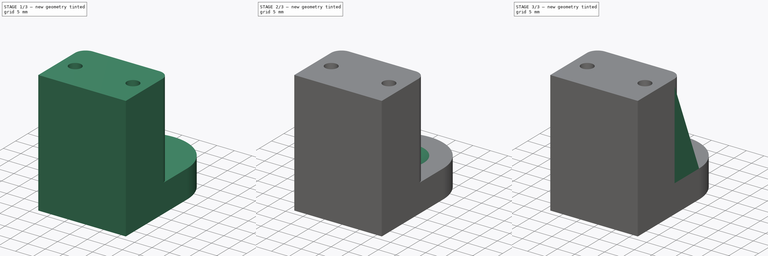
[diagram: build sequence overview — one tinted view per stage of 3, left to right]
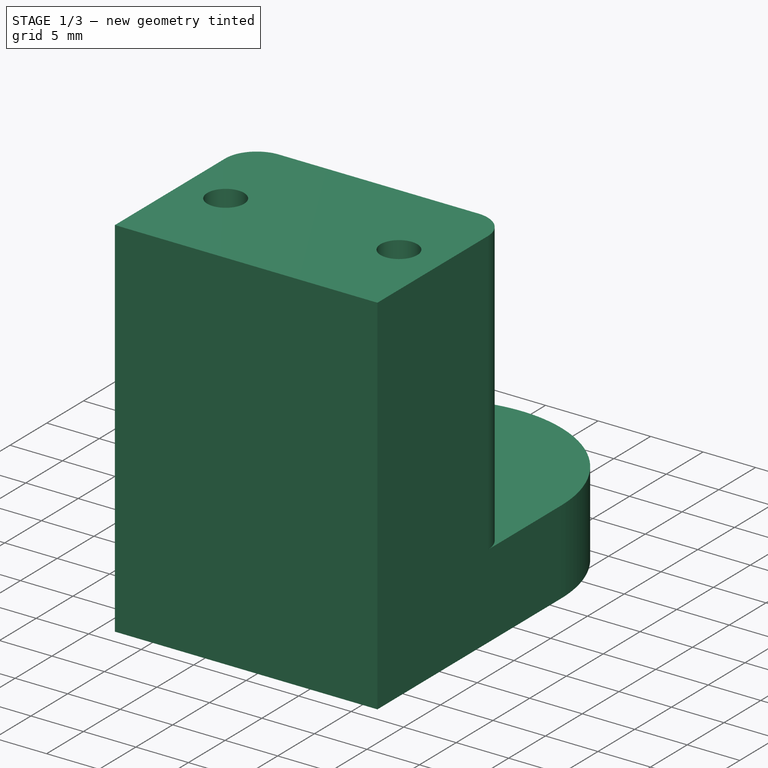
[diagram: stage 1 of 3 — iso view after this stage's code; geometry added in this stage tinted green]
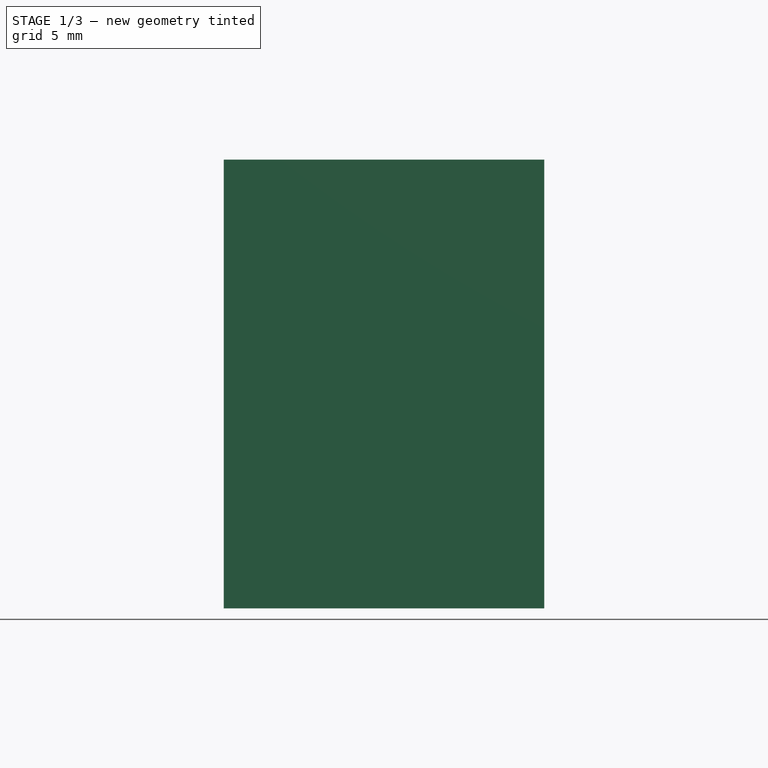
[diagram: stage 1 of 3 — front view after this stage's code; geometry added in this stage tinted green]
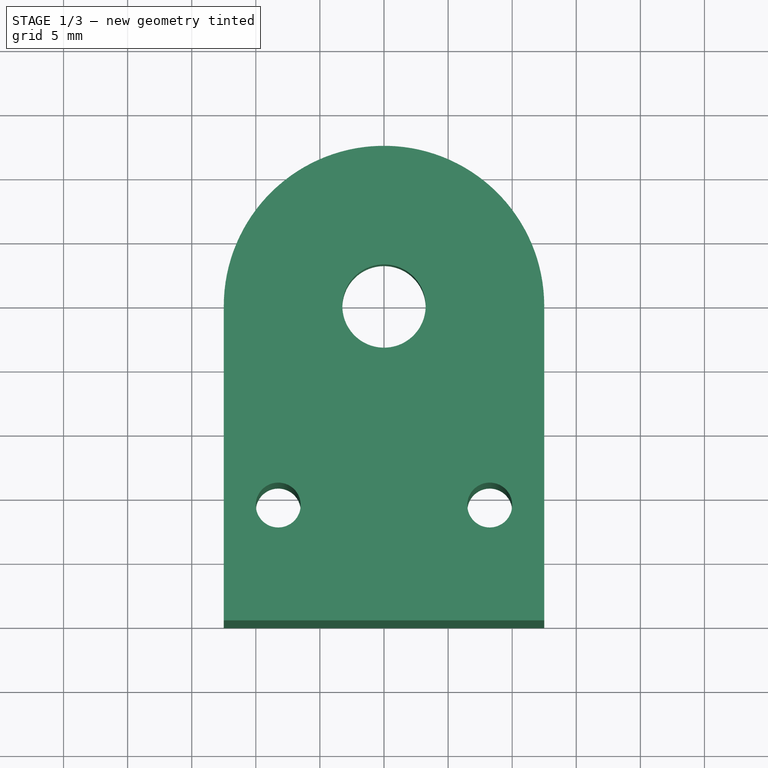
[diagram: stage 1 of 3 — top view after this stage's code; geometry added in this stage tinted green]
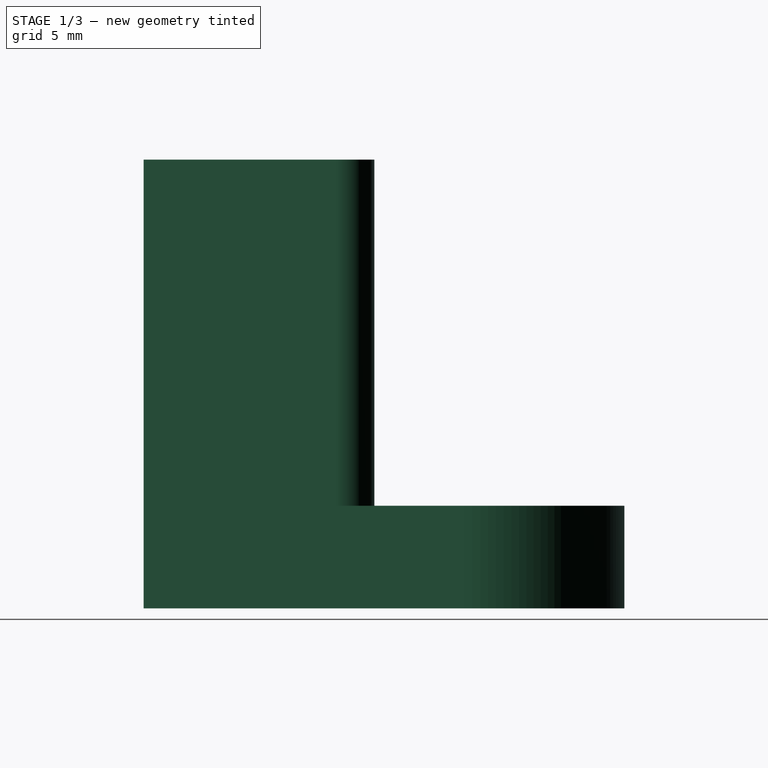
[diagram: stage 1 of 3 — right view after this stage's code; geometry added in this stage tinted green]
FCSTD DOCUMENT  (FreeCAD 0.18.4R)
Label: lamp_holder
License: All rights reserved
LicenseURL: http://en.wikipedia.org/wiki/All_rights_reserved
objects: Sketcher::SketchObject×4, PartDesign::Pad×4, PartDesign::Chamfer×1, PartDesign::Body×1, App::Part×1
note: 14 computed .brp shape members not serialized (recipe doc carries the construction recipe); baked Part::Feature solids carry a one-line shape summary decoded from their .brp

FEATURE [Sketcher::SketchObject] Sketch
  MapMode = 5
  Support = -> [XY_Plane001]
  sketch-geometry (8):
    g0: LineSegment StartX=-12.5 StartY=15 StartZ=0 EndX=-12.5 EndY=0 EndZ=0
    g1: LineSegment StartX=-12.5 StartY=0 StartZ=0 EndX=12.5 EndY=0 EndZ=0
    g2: LineSegment StartX=12.5 StartY=0 StartZ=0 EndX=12.5 EndY=15 EndZ=0
    g3: ArcOfCircle CenterX=-9.5 CenterY=15 CenterZ=0 NormalX=0 NormalY=0 NormalZ=1 AngleXU=0 Radius=3 StartAngle=1.5708 EndAngle=3.14159
    g4: ArcOfCircle CenterX=9.5 CenterY=15 CenterZ=0 NormalX=0 NormalY=0 NormalZ=1 AngleXU=0 Radius=3 StartAngle=0 EndAngle=1.5708
    g5: LineSegment StartX=-9.5 StartY=18 StartZ=0 EndX=9.5 EndY=18 EndZ=0
    g6: Circle CenterX=-8.25 CenterY=9 CenterZ=0 NormalX=0 NormalY=0 NormalZ=1 AngleXU=0 Radius=1.75
    g7: Circle CenterX=8.25 CenterY=9 CenterZ=0 NormalX=0 NormalY=0 NormalZ=1 AngleXU=0 Radius=1.75
  constraints (22):
    c: Coincident(g0,g1)
    c: Coincident(g1,g2)
    c: DistanceX(g0,g1) = 25
    c: Vertical(g0)
    c: Equal(g0,g2)
    c: DistanceY(g0,g0) = 15
    c: Symmetric(g0,g1,g-2)
    c: PointOnObject(g0,g-1)
    c: Coincident(g5,g3)
    c: Coincident(g4,g5)
    c: Coincident(g4,g2)
    c: Coincident(g0,g3)
    c: Symmetric(g4,g3,g-2)
    c: Symmetric(g4,g3,g-2)
    c: DistanceX(g3,g4) = 19
    c: DistanceY(g3,g3) = 3
    c: DistanceY(g-1,g4) = 18
    c: DistanceX(g6,g7) = 16.5
    c: Symmetric(g6,g7,g-2)
    c: Equal(g6,g7)
    c: Diameter(g6) = 3.5
    c: DistanceY(g-1,g6) = 9
FEATURE [PartDesign::Pad] Pad
  Length = 27
  Length2 = 100
  Profile = -> Sketch
  Type = 0
FEATURE [Sketcher::SketchObject] Sketch001
  ExternalGeometry = -> [Pad]
  MapMode = 5
  Placement = pos=(0,0,0) rot=(1,0,0;3.14159rad)
  Support = -> [Pad]
  sketch-geometry (9):
    g0: LineSegment StartX=-12.5 StartY=-25 StartZ=0 EndX=-12.5 EndY=0 EndZ=0
    g1: LineSegment StartX=-12.5 StartY=0 StartZ=0 EndX=12.5 EndY=0 EndZ=0
    g2: LineSegment StartX=12.5 StartY=0 StartZ=0 EndX=12.5 EndY=-25 EndZ=0
    g3: Circle CenterX=0 CenterY=-25 CenterZ=0 NormalX=0 NormalY=0 NormalZ=1 AngleXU=0 Radius=3.25
    g4: ArcOfCircle CenterX=-8.25 CenterY=-9 CenterZ=0 NormalX=0 NormalY=0 NormalZ=1 AngleXU=0 Radius=2.75 StartAngle=1.5708 EndAngle=4.71239
    g5: ArcOfCircle CenterX=8.25 CenterY=-9 CenterZ=0 NormalX=0 NormalY=0 NormalZ=1 AngleXU=0 Radius=2.75 StartAngle=4.71239 EndAngle=7.85398
    g6: LineSegment StartX=-8.25 StartY=-11.75 StartZ=0 EndX=8.25 EndY=-11.75 EndZ=0
    g7: LineSegment StartX=-8.25 StartY=-6.25 StartZ=0 EndX=8.25 EndY=-6.25 EndZ=0
    g8: ArcOfCircle CenterX=0 CenterY=-25 CenterZ=0 NormalX=0 NormalY=0 NormalZ=1 AngleXU=0 Radius=12.5 StartAngle=3.14159 EndAngle=6.28319
  constraints (21):
    c: Coincident(g0,g1)
    c: Coincident(g1,g2)
    c: Coincident(g-3,g1)
    c: Coincident(g0,g-3)
    c: Equal(g0,g2)
    c: DistanceY(g0,g0) = 25
    c: PointOnObject(g3,g-2)
    c: DistanceY(g3,g-1) = 25
    c: Tangent(g4,g7) = 1.5708
    c: Tangent(g4,g6) = -1.5708
    c: Tangent(g6,g5) = -1.5708
    c: Tangent(g7,g5) = 1.5708
    c: Horizontal(g6)
    c: Coincident(g5,g-4)
    c: Coincident(g4,g-5)
    c: DistanceY(g5,g5) = 5.5
    c: Coincident(g8,g3)
    c: Coincident(g8,g2)
    c: Coincident(g8,g0)
    c: Vertical(g2)
    c: Diameter(g3) = 6.5
FEATURE [PartDesign::Pad] Pad001
  BaseFeature = -> Pad
  Length = 8
  Length2 = 100
  Profile = -> Sketch001
  Type = 0
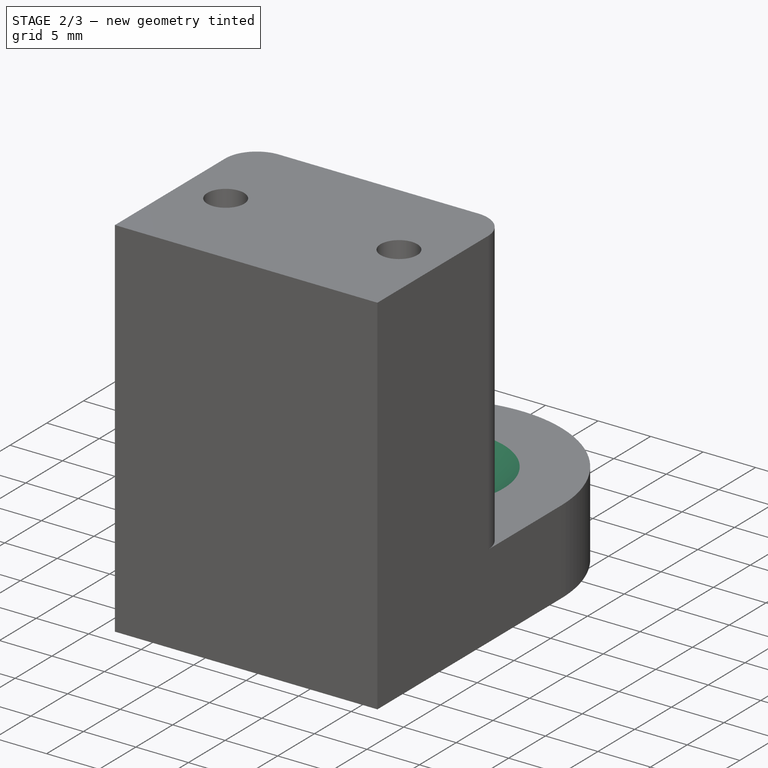
[diagram: stage 2 of 3 — iso view after this stage's code; geometry added in this stage tinted green]
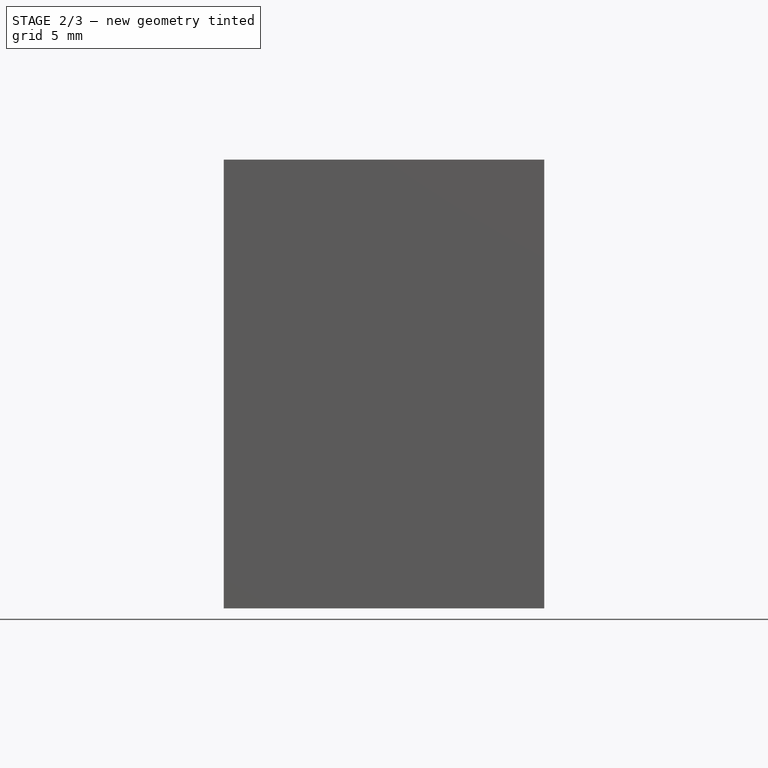
[diagram: stage 2 of 3 — front view after this stage's code; geometry added in this stage tinted green]
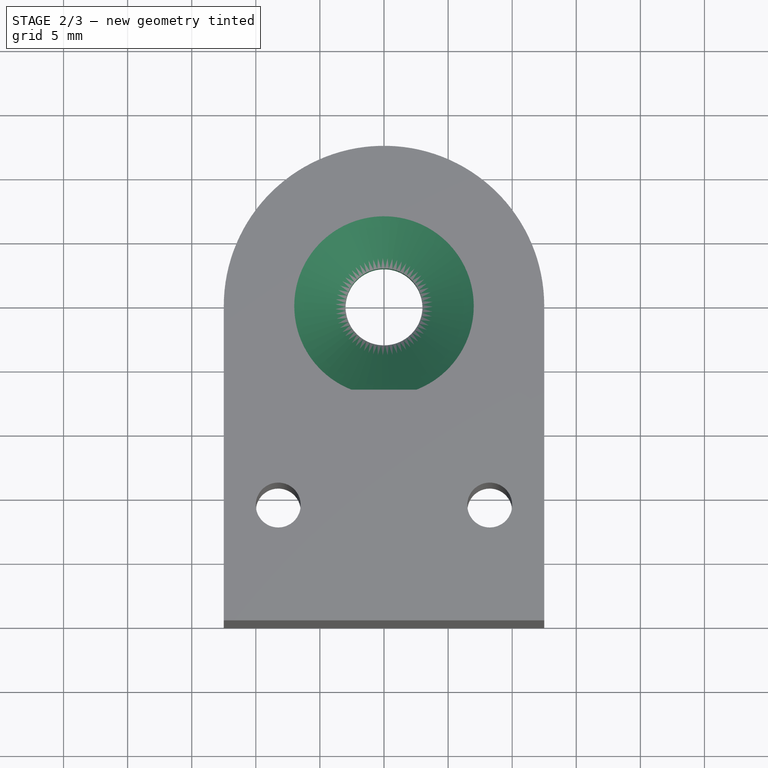
[diagram: stage 2 of 3 — top view after this stage's code; geometry added in this stage tinted green]
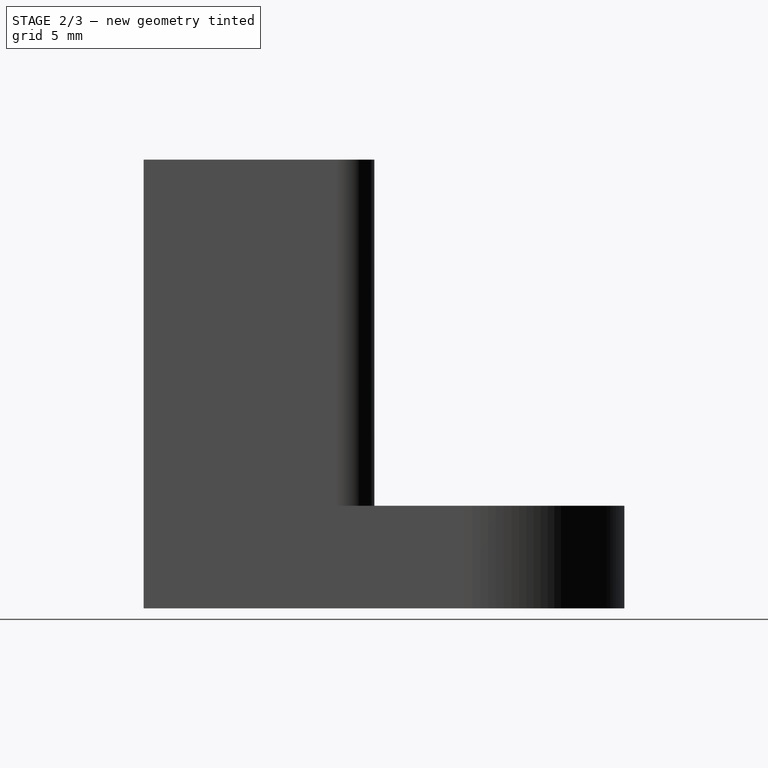
[diagram: stage 2 of 3 — right view after this stage's code; geometry added in this stage tinted green]
FEATURE [PartDesign::Chamfer] Chamfer
  Base = -> Pad001 [Edge25]
  BaseFeature = -> Pad001
  Size = 4
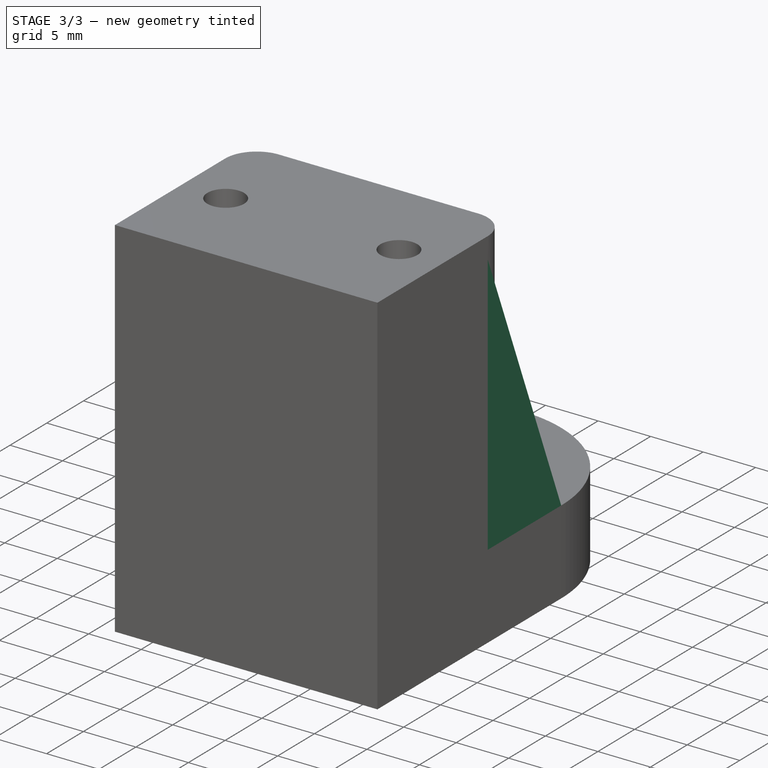
[diagram: stage 3 of 3 — iso view after this stage's code; geometry added in this stage tinted green]
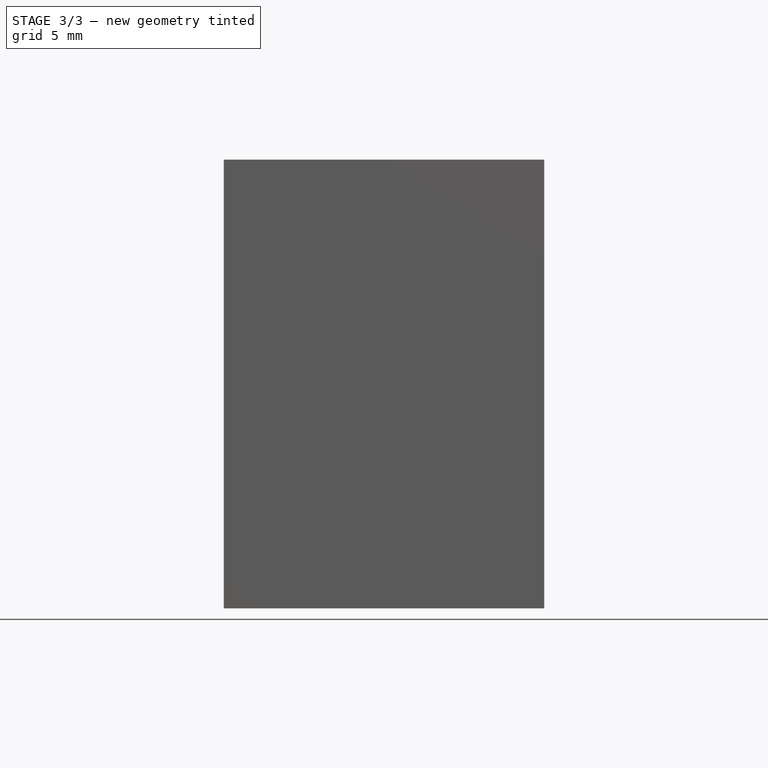
[diagram: stage 3 of 3 — front view after this stage's code; geometry added in this stage tinted green]
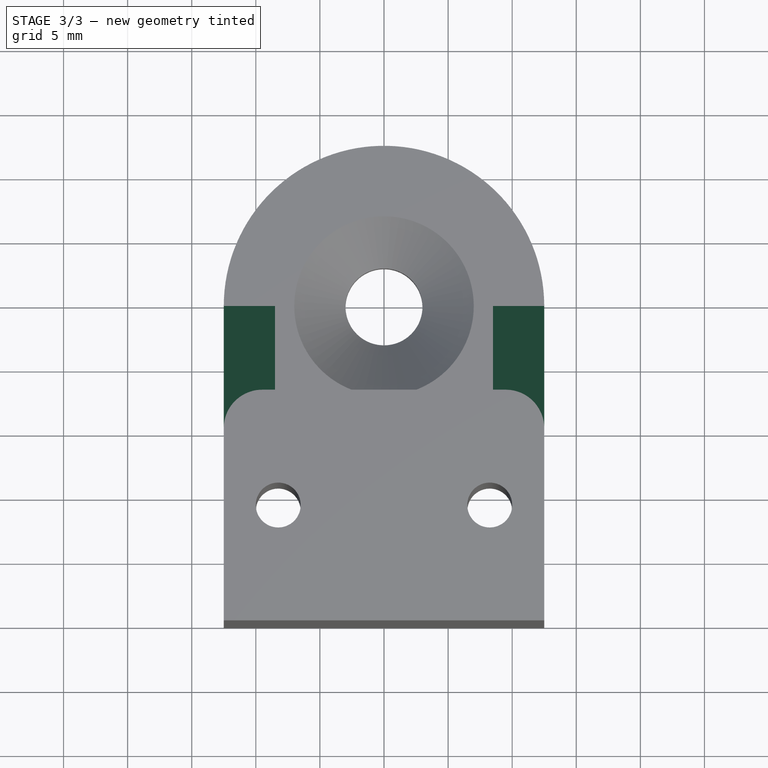
[diagram: stage 3 of 3 — top view after this stage's code; geometry added in this stage tinted green]
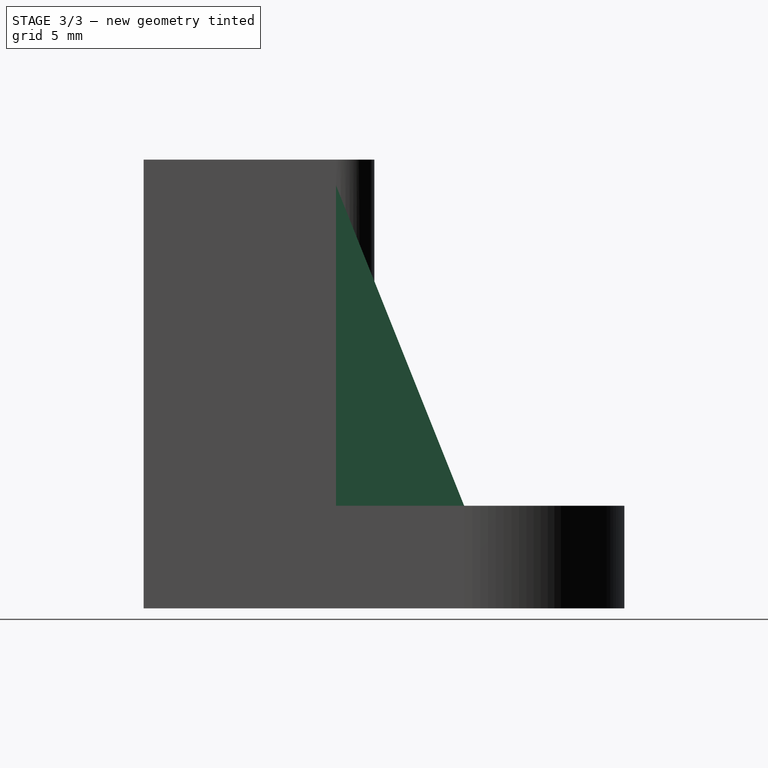
[diagram: stage 3 of 3 — right view after this stage's code; geometry added in this stage tinted green]
FEATURE [Sketcher::SketchObject] Sketch002
  ExternalGeometry = -> [Chamfer]
  MapMode = 5
  Placement = pos=(-12.5,0,0) rot=(0.57735,-0.57735,-0.57735;2.0944rad)
  Support = -> [Chamfer]
  sketch-geometry (3):
    g0: LineSegment StartX=-25 StartY=0 StartZ=0 EndX=-15 EndY=0 EndZ=0
    g1: LineSegment StartX=-15 StartY=0 StartZ=0 EndX=-15 EndY=25 EndZ=0
    g2: LineSegment StartX=-15 StartY=25 StartZ=0 EndX=-25 EndY=0 EndZ=0
  constraints (7):
    c: Coincident(g0,g1)
    c: Coincident(g1,g2)
    c: Coincident(g2,g0)
    c: Coincident(g0,g-3)
    c: Coincident(g0,g-3)
    c: Vertical(g1)
    c: DistanceY(g0,g1) = 25
FEATURE [PartDesign::Pad] Pad002
  BaseFeature = -> Chamfer
  Length = 4
  Length2 = 100
  Profile = -> Sketch002
  Reversed = true
  Type = 0
FEATURE [Sketcher::SketchObject] Sketch003
  ExternalGeometry = -> [Pad002]
  MapMode = 5
  Placement = pos=(12.5,0,0) rot=(0.57735,0.57735,0.57735;2.0944rad)
  Support = -> [Pad002]
  sketch-geometry (3):
    g0: LineSegment StartX=15 StartY=0 StartZ=0 EndX=25 EndY=0 EndZ=0
    g1: LineSegment StartX=25 StartY=0 StartZ=0 EndX=15 EndY=25 EndZ=0
    g2: LineSegment StartX=15 StartY=25 StartZ=0 EndX=15 EndY=0 EndZ=0
  constraints (7):
    c: Coincident(g0,g1)
    c: Coincident(g1,g2)
    c: Coincident(g2,g0)
    c: Coincident(g0,g-3)
    c: Coincident(g-3,g0)
    c: Vertical(g2)
    c: DistanceY(g0,g1) = 25
FEATURE [PartDesign::Pad] Pad003
  BaseFeature = -> Pad002
  Length = 4
  Length2 = 100
  Profile = -> Sketch003
  Reversed = true
  Type = 0
FEATURE [PartDesign::Body] Body
  Group = -> [Sketch,Pad,Sketch001,Pad001,Chamfer,Sketch002,Pad002,Sketch003,Pad003]
  Origin = -> Origin001
  Tip = -> Pad003
FEATURE [App::Part] Part
  Group = -> [Body]
  Origin = -> Origin
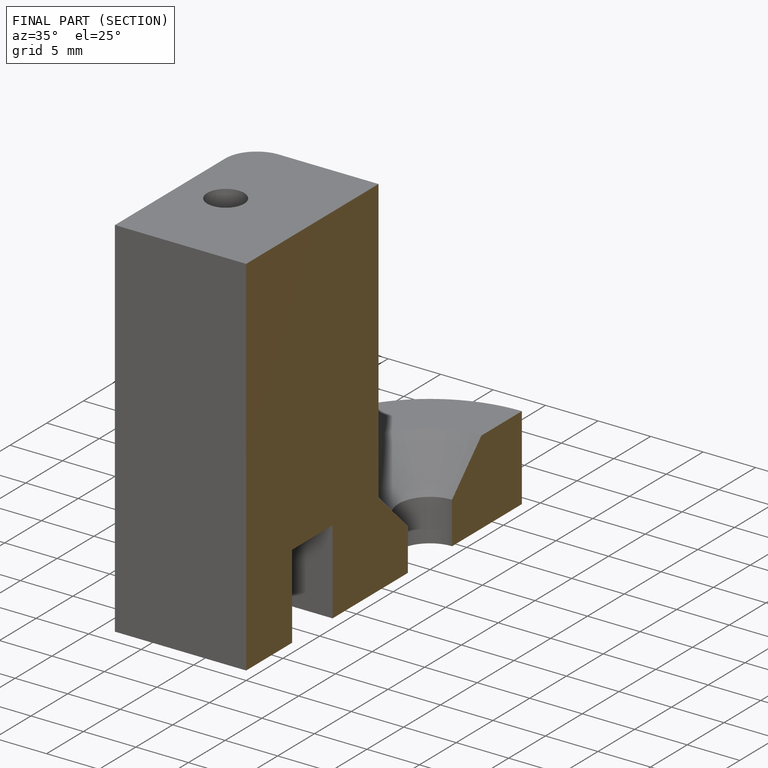
[diagram: finished part — half-section view (interior)]
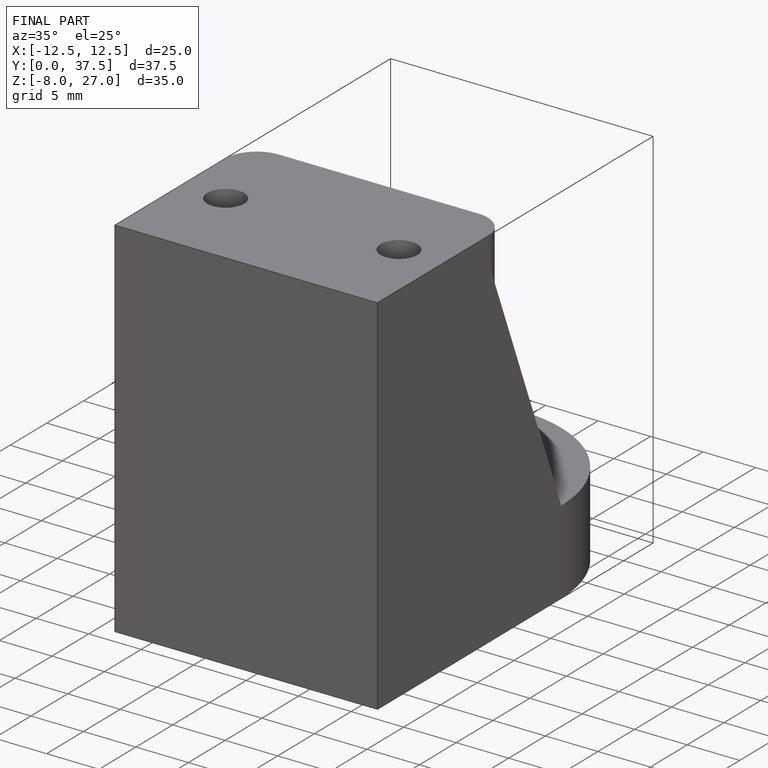
[diagram: finished part — iso view with bounding-box wireframe]
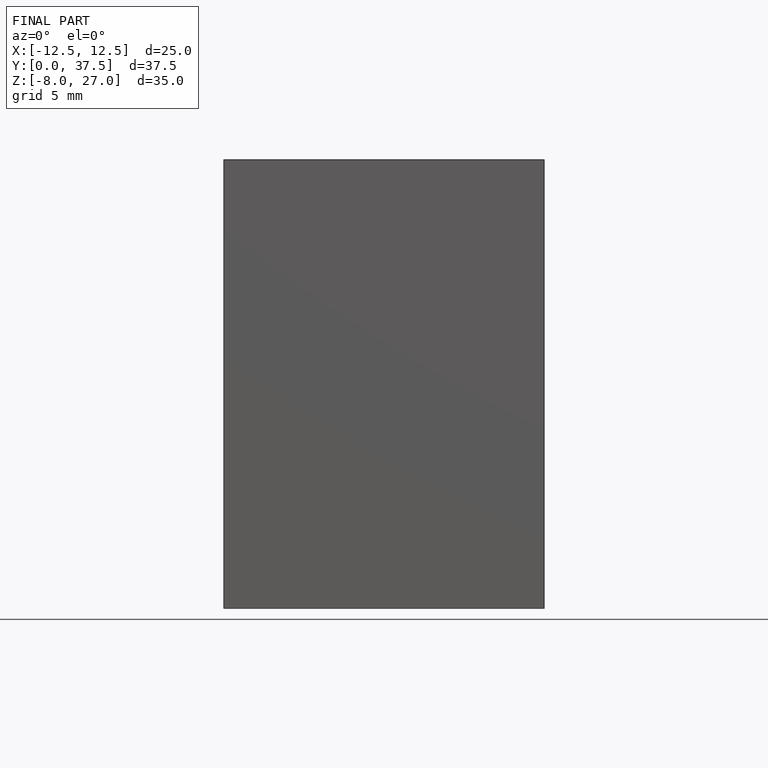
[diagram: finished part — front view with bounding-box wireframe]
